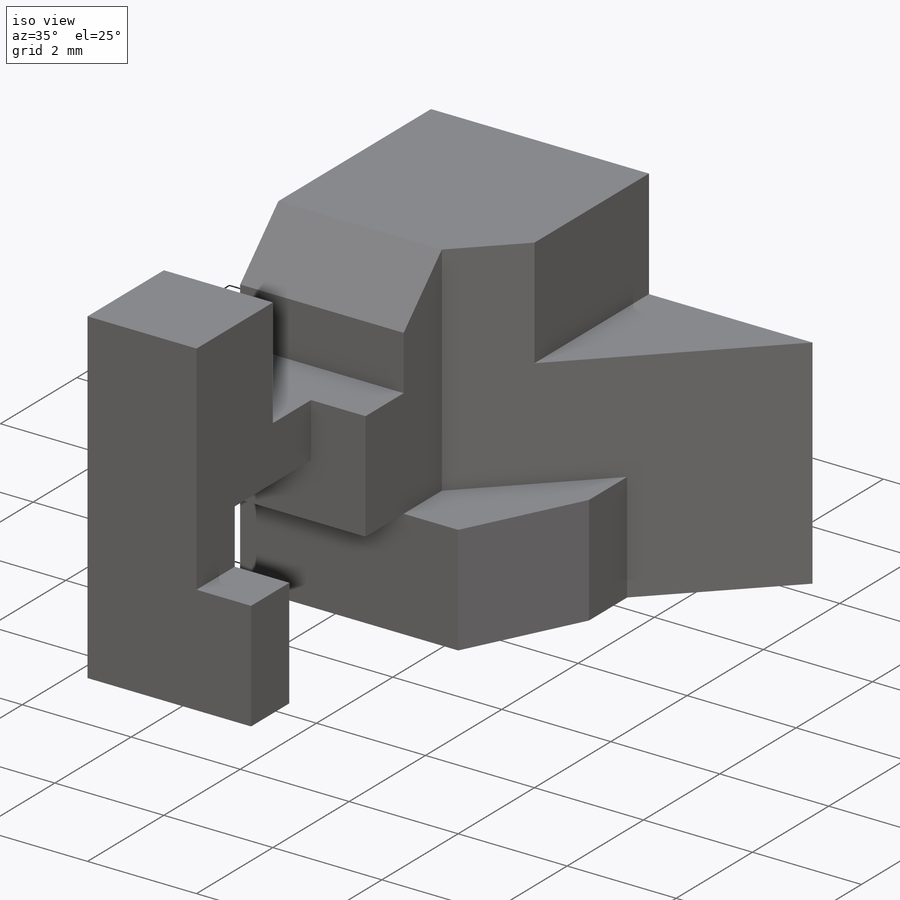
[diagram: iso view]
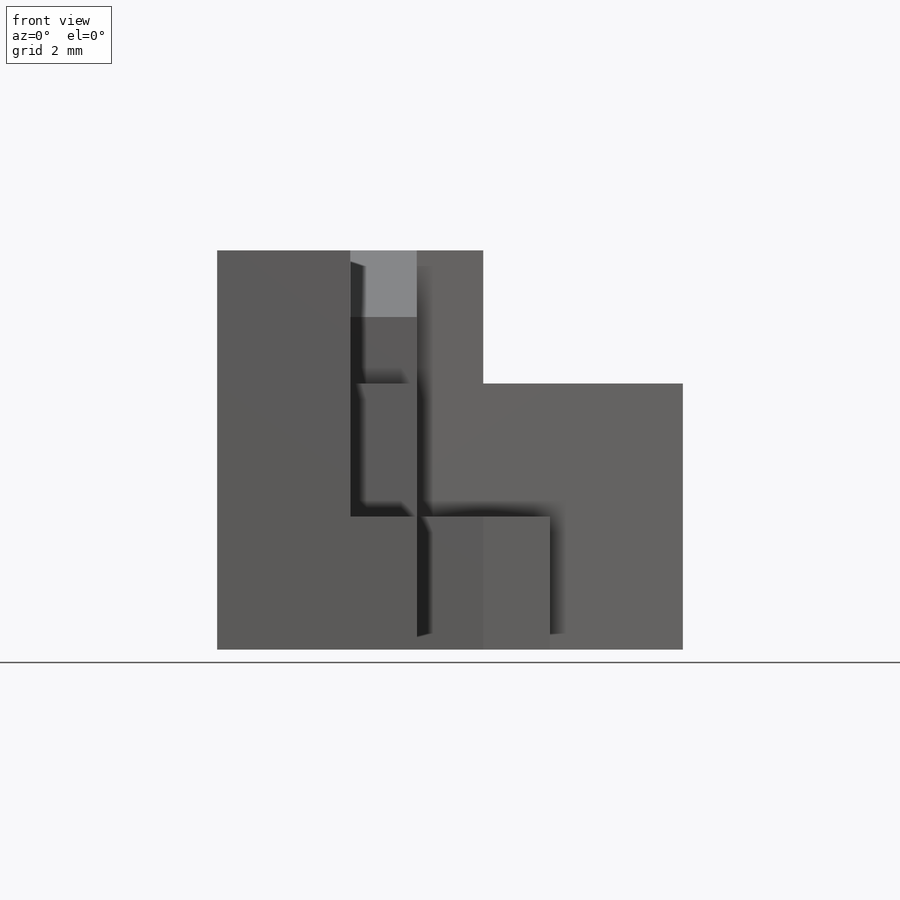
[diagram: front view]
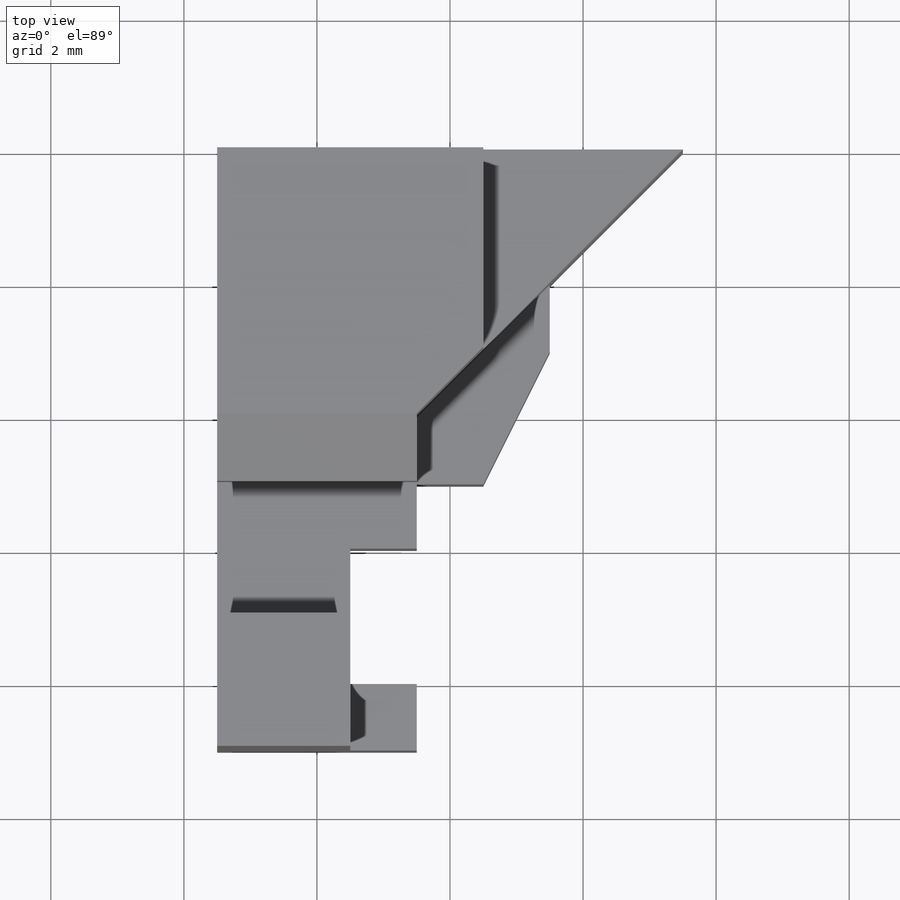
[diagram: top view]
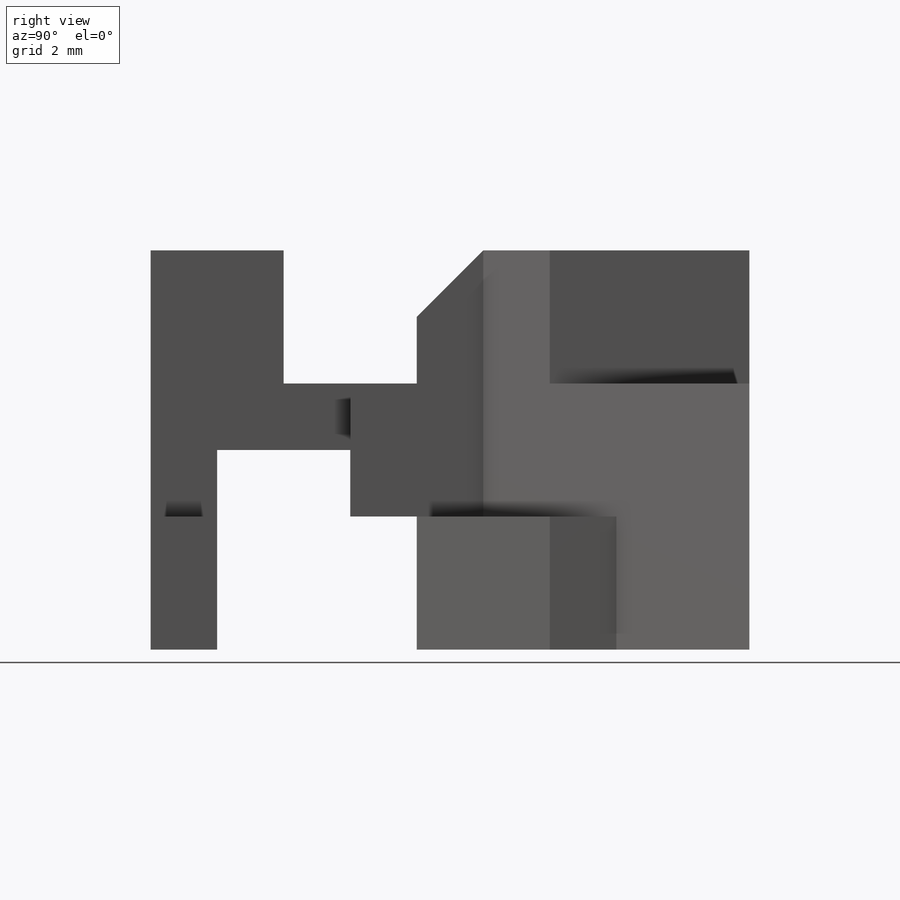
[diagram: right view]
SOLIDWORKS PART (.sldprt)
format: sldprt  version: not decoded by parser v0  size: 269,824 bytes
history: native  units: mm
features: sketch x10, cut_extrude x9, material x1, extrude x1 (+13 scaffold rows collapsed)
feature tree (34):
  scaffold x13  (default folders/planes/origin — collapsed)
  material  "Material <not specified>"
  sketch  "Sketch1"  dims[D1=7.0mm D2=6.0mm]
  extrude  "Boss-Extrude1"  Depth=9mm
  sketch  "Sketch2"  dims[D1=3.0mm D2=3.0mm]
  cut_extrude  "Cut-Extrude1"  Depth=2mm
  sketch  "Sketch3"
  cut_extrude  "Cut-Extrude3"  Depth=4mm
  sketch  "Sketch4"  dims[D1=1.0mm D2=1.0mm D3=4.0mm]
  cut_extrude  "Cut-Extrude4"  [1 undecoded]
  sketch  "Sketch5"  dims[D1=2.0mm D2=1.0mm]
  cut_extrude  "Cut-Extrude5"  [1 undecoded]
  sketch  "Sketch7"  dims[D1=3.0mm D2=3.0mm D3=4.0mm]
  cut_extrude  "Cut-Extrude8"  Depth=4mm
  sketch  "Sketch8"  dims[D1=3.0mm D2=2.0mm D3=1.0mm D4=2.0mm]
  cut_extrude  "Cut-Extrude9"  [1 undecoded]
  sketch  "Sketch11"  dims[D1=2.0mm]
  cut_extrude  "Cut-Extrude12"  [1 undecoded]
  sketch  "Sketch12"
  cut_extrude  "Cut-Extrude13"  Depth=1mm
  sketch  "Sketch13"
  cut_extrude  "Cut-Extrude14"  [1 undecoded]
decode coverage: 12 of 20 modeling features carry decoded parameters
note: 5 parameter values undecoded
summary: no parameter record found for 5 features
note: suppression state not decoded; provenance and decode notes live in map.json
